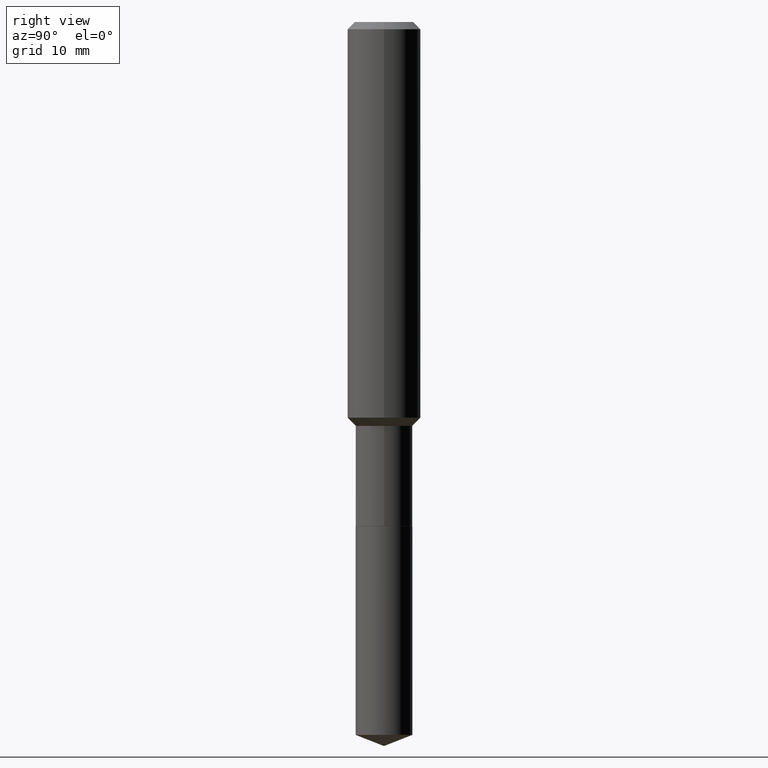
[diagram: clean part render]
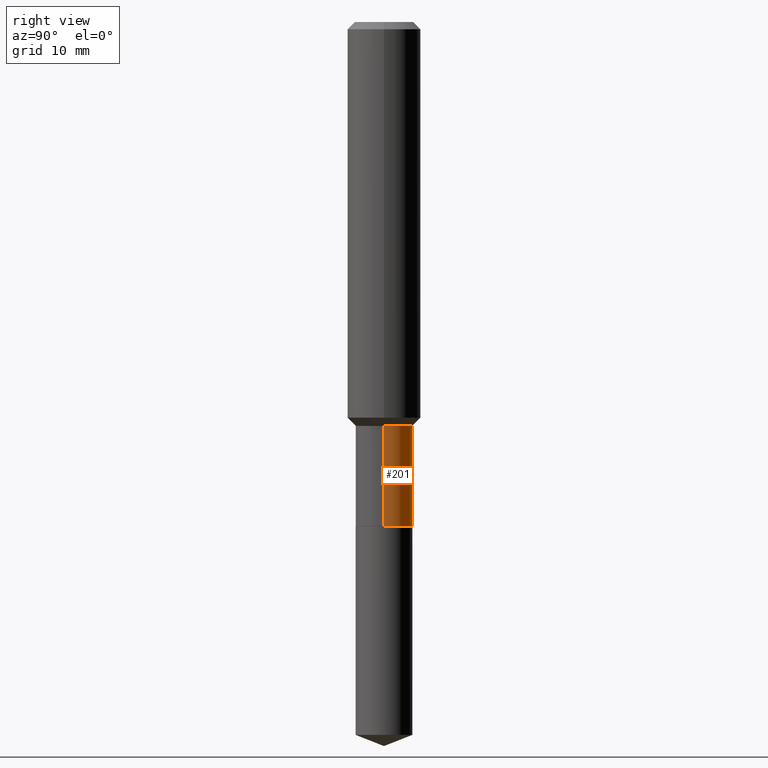
[diagram: same view with one face highlighted and labeled with its STEP entity id]
A machine part, right view. The second image highlights one B-rep face of the part: STEP entity #201.
In plain terms, the highlighted cylindrical surface (edge-blend (fillet) strip) has radius 3.1001 mm, axis along (-0, 0, 1).
Its self-contained STEP definition (entity closure, byte-faithful):
#25 = CARTESIAN_POINT ( 'NONE',  ( 5.293950871629583880E-29, -7.558358802327641618E-15, -2.164800000000000058 ) ) ;
#68 = DIRECTION ( 'NONE',  ( 1.000000000000000000, -6.982962677686266711E-15, 4.876176775795935793E-29 ) ) ;
#70 = CARTESIAN_POINT ( 'NONE',  ( -0.1220499999999999502, -5.940822053615047978E-15, -1.735000000000000098 ) ) ;
#75 = VERTEX_POINT ( 'NONE', #124 ) ;
#87 = ORIENTED_EDGE ( 'NONE', *, *, #301, .T. ) ;
#106 = CIRCLE ( 'NONE', #232, 0.1220499999999999502 ) ;
#108 = DIRECTION ( 'NONE',  ( -2.445468806185136597E-29, 3.491481338843145583E-15, 1.000000000000000000 ) ) ;
#111 = DIRECTION ( 'NONE',  ( -2.445468806185136877E-29, 3.491481338843145188E-15, 1.000000000000000000 ) ) ;
#124 = CARTESIAN_POINT ( 'NONE',  ( -0.1220500000000000057, -5.940822053615047978E-15, -2.164800000000000058 ) ) ;
#141 = LINE ( 'NONE', #295, #164 ) ;
#163 = EDGE_CURVE ( 'NONE', #75, #348, #141, .T. ) ;
#164 = VECTOR ( 'NONE', #440, 39.37007874015748143 ) ;
#167 = CARTESIAN_POINT ( 'NONE',  ( 0.1220499999999999502, -6.909990717704466794E-15, -1.735000000000000098 ) ) ;
#171 = EDGE_LOOP ( 'NONE', ( #87, #377, #227, #422 ) ) ;
#201 = ADVANCED_FACE ( 'NONE', ( #299 ), #481, .T. ) ;
#204 = CARTESIAN_POINT ( 'NONE',  ( 4.242888378731212847E-29, -6.057720122892857986E-15, -1.735000000000000098 ) ) ;
#220 = DIRECTION ( 'NONE',  ( 1.000000000000000000, -6.982962677686265133E-15, 0.000000000000000000 ) ) ;
#227 = ORIENTED_EDGE ( 'NONE', *, *, #460, .F. ) ;
#232 = AXIS2_PLACEMENT_3D ( 'NONE', #204, #273, #240 ) ;
#240 = DIRECTION ( 'NONE',  ( 1.000000000000000000, -6.982962677686266711E-15, 0.000000000000000000 ) ) ;
#256 = VECTOR ( 'NONE', #111, 39.37007874015748143 ) ;
#267 = CARTESIAN_POINT ( 'NONE',  ( 0.1220499999999999780, -8.410629397139250426E-15, -2.164800000000000058 ) ) ;
#273 = DIRECTION ( 'NONE',  ( -2.445468806185136597E-29, 3.491481338843145583E-15, 1.000000000000000000 ) ) ;
#280 = CIRCLE ( 'NONE', #350, 0.1220499999999999780 ) ;
#283 = AXIS2_PLACEMENT_3D ( 'NONE', #451, #108, #68 ) ;
#288 = LINE ( 'NONE', #330, #256 ) ;
#295 = CARTESIAN_POINT ( 'NONE',  ( -0.1220499999999999641, 8.672174089952020216E-16, -6.003560277656110794E-30 ) ) ;
#299 = FACE_OUTER_BOUND ( 'NONE', #171, .T. ) ;
#301 = EDGE_CURVE ( 'NONE', #431, #75, #280, .T. ) ;
#330 = CARTESIAN_POINT ( 'NONE',  ( 0.1220499999999999641, -8.522705948116086106E-16, 5.951373754858937892E-30 ) ) ;
#348 = VERTEX_POINT ( 'NONE', #70 ) ;
#350 = AXIS2_PLACEMENT_3D ( 'NONE', #25, #441, #220 ) ;
#364 = EDGE_CURVE ( 'NONE', #431, #446, #288, .T. ) ;
#377 = ORIENTED_EDGE ( 'NONE', *, *, #163, .T. ) ;
#422 = ORIENTED_EDGE ( 'NONE', *, *, #364, .F. ) ;
#431 = VERTEX_POINT ( 'NONE', #267 ) ;
#440 = DIRECTION ( 'NONE',  ( -2.445468806185136877E-29, 3.491481338843145188E-15, 1.000000000000000000 ) ) ;
#441 = DIRECTION ( 'NONE',  ( -2.445468806185136597E-29, 3.491481338843145583E-15, 1.000000000000000000 ) ) ;
#446 = VERTEX_POINT ( 'NONE', #167 ) ;
#451 = CARTESIAN_POINT ( 'NONE',  ( 0.000000000000000000, 0.000000000000000000, 0.000000000000000000 ) ) ;
#460 = EDGE_CURVE ( 'NONE', #446, #348, #106, .T. ) ;
#481 = CYLINDRICAL_SURFACE ( 'NONE', #283, 0.1220499999999999641 ) ;